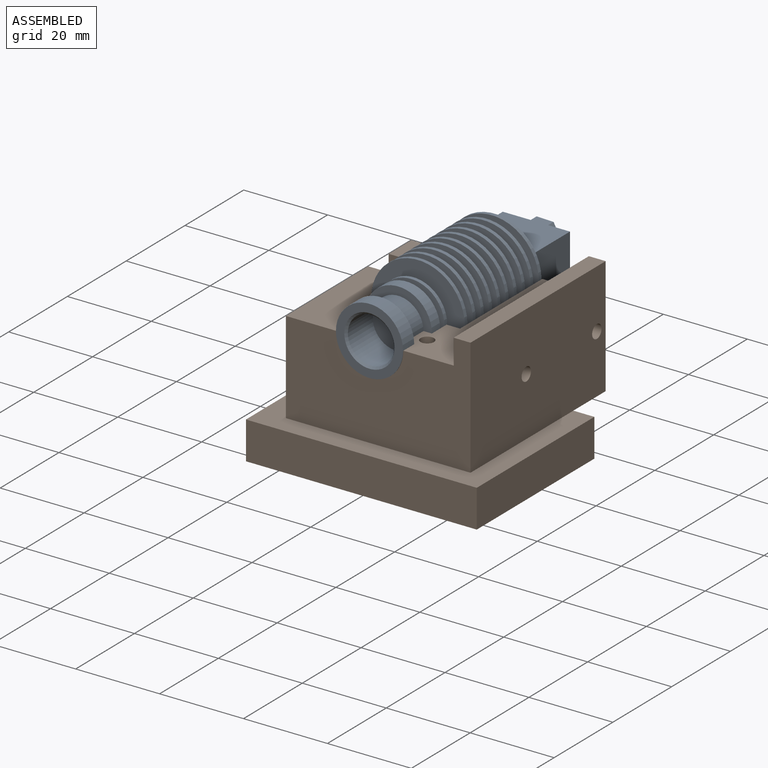
[diagram: assembled view]
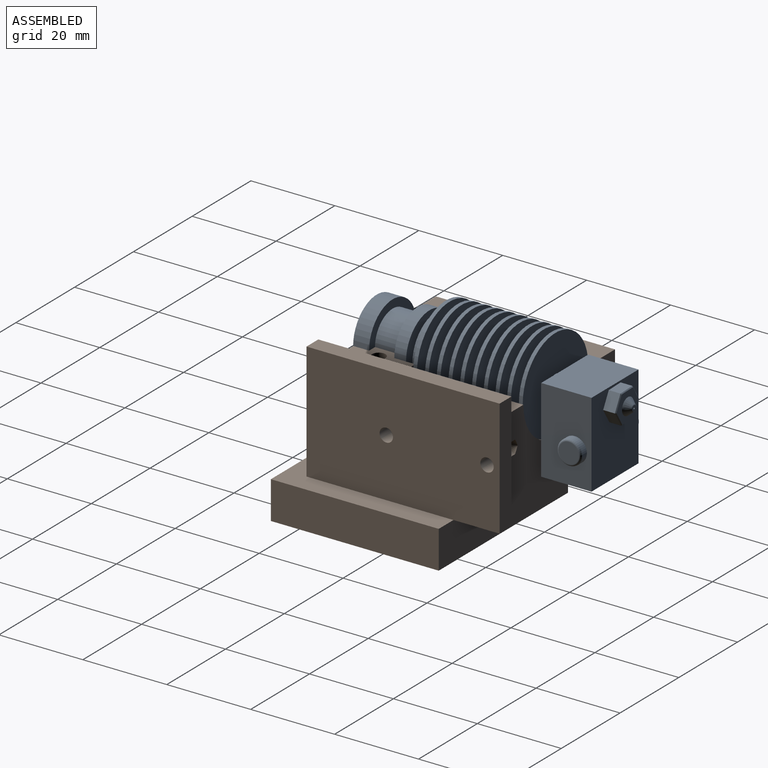
[diagram: assembled view, second angle]
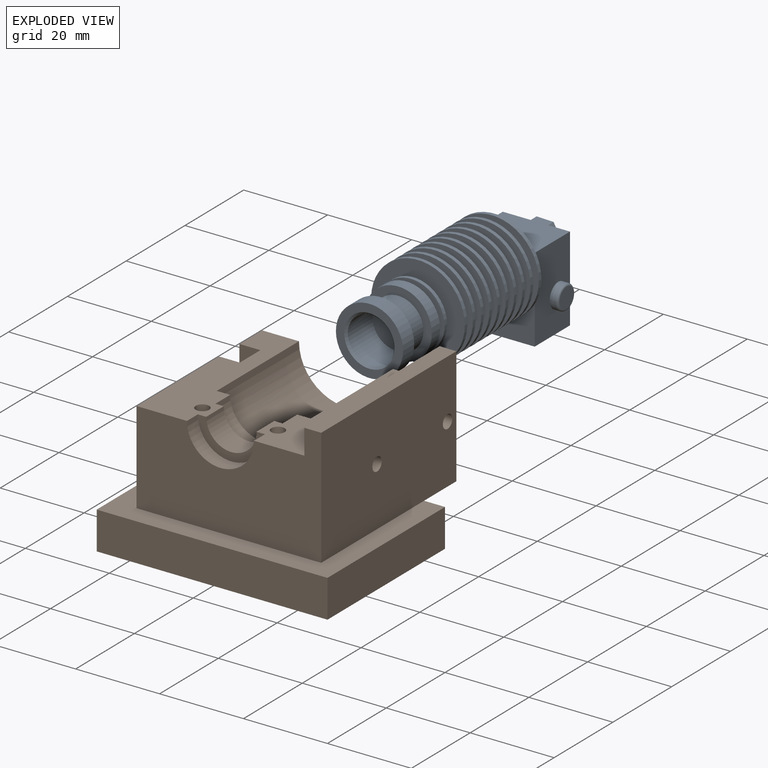
[diagram: exploded view]
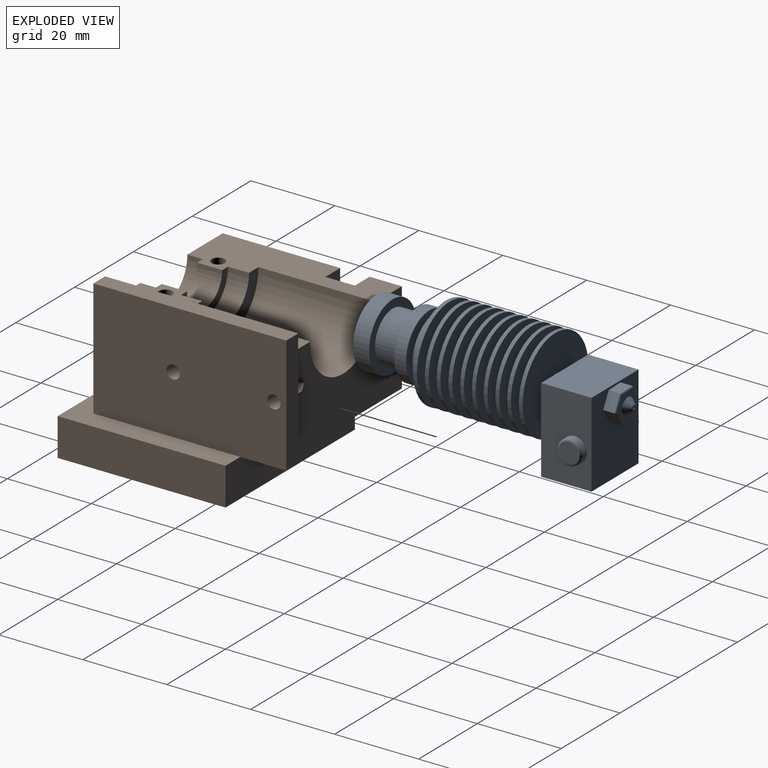
[diagram: exploded view, second angle]
ASSEMBLY  parts=2 mates=2
PART A: 112 faces, bbox 22.3x61.3x27.4 mm
  f0: plane 20.2x16mm, normal (0,1,0), area 280.8mm2, adj f56,f57,f58,f59,f67,f68,f69,f70
  f1: cylinder r=11.15mm len=22.3mm, axis (0,1,0), area 63.1mm2, adj f2,f3
  f2: plane 22.3x22.3mm, normal (0,-1,0), area 312mm2, adj f1,f40
  f3: plane 22.3x22.3mm, normal (0,1,0), area 312mm2, adj f1,f4
  f4: cylinder r=5mm len=10mm, axis (0,1,0), area 59.7mm2, adj f3,f9
  f5: cylinder r=11.15mm len=22.3mm, axis (0,1,0), area 63.1mm2, adj f6,f7
  f6: plane 22.3x22.3mm, normal (0,-1,0), area 312mm2, adj f5,f29
  f7: plane 22.3x22.3mm, normal (0,1,0), area 374mm2, adj f5,f55
  f8: cylinder r=11.15mm len=22.3mm, axis (0,1,0), area 63.1mm2, adj f9,f10
  f9: plane 22.3x22.3mm, normal (0,-1,0), area 312mm2, adj f4,f8
  f10: plane 22.3x22.3mm, normal (0,1,0), area 312mm2, adj f8,f39
  f11: cylinder r=11.15mm len=22.3mm, axis (0,1,0), area 63.1mm2, adj f12,f13
  f12: plane 22.3x22.3mm, normal (0,-1,0), area 312mm2, adj f11,f39
  f13: plane 22.3x22.3mm, normal (0,1,0), area 312mm2, adj f11,f38
  f14: cylinder r=11.15mm len=22.3mm, axis (0,1,0), area 63.1mm2, adj f15,f16
  f15: plane 22.3x22.3mm, normal (0,-1,0), area 312mm2, adj f14,f38
  f16: plane 22.3x22.3mm, normal (0,1,0), area 312mm2, adj f14,f37
  f17: cylinder r=11.15mm len=22.3mm, axis (0,1,0), area 63.1mm2, adj f18,f19
  f18: plane 22.3x22.3mm, normal (0,-1,0), area 312mm2, adj f17,f37
  f19: plane 22.3x22.3mm, normal (0,1,0), area 312mm2, adj f17,f36
  f20: cylinder r=11.15mm len=22.3mm, axis (0,1,0), area 63.1mm2, adj f21,f22
  f21: plane 22.3x22.3mm, normal (0,-1,0), area 312mm2, adj f20,f36
  f22: plane 22.3x22.3mm, normal (0,1,0), area 312mm2, adj f20,f35
  f23: cylinder r=11.15mm len=22.3mm, axis (0,1,0), area 63.1mm2, adj f24,f25
  f24: plane 22.3x22.3mm, normal (0,-1,0), area 312mm2, adj f23,f35
  f25: plane 22.3x22.3mm, normal (0,1,0), area 312mm2, adj f23,f34
  f26: cylinder r=11.15mm len=22.3mm, axis (0,1,0), area 63.1mm2, adj f27,f28
  f27: plane 22.3x22.3mm, normal (0,-1,0), area 312mm2, adj f26,f34
  f28: plane 22.3x22.3mm, normal (0,1,0), area 312mm2, adj f26,f33
  f29: cylinder r=5mm len=10mm, axis (0,1,0), area 59.7mm2, adj f6,f32
  f30: cylinder r=11.15mm len=22.3mm, axis (0,1,0), area 63.1mm2, adj f31,f32
  f31: plane 22.3x22.3mm, normal (0,-1,0), area 312mm2, adj f30,f33
  f32: plane 22.3x22.3mm, normal (0,1,0), area 312mm2, adj f29,f30
  f33: cylinder r=5mm len=10mm, axis (0,1,0), area 59.7mm2, adj f28,f31
  f34: cylinder r=5mm len=10mm, axis (0,1,0), area 59.7mm2, adj f25,f27
  f35: cylinder r=5mm len=10mm, axis (0,1,0), area 59.7mm2, adj f22,f24
  f36: cylinder r=5mm len=10mm, axis (0,1,0), area 59.7mm2, adj f19,f21
  f37: cylinder r=5mm len=10mm, axis (0,1,0), area 59.7mm2, adj f16,f18
  f38: cylinder r=5mm len=10mm, axis (0,1,0), area 59.7mm2, adj f13,f15
  f39: cylinder r=5mm len=10mm, axis (0,1,0), area 59.7mm2, adj f10,f12
  f40: cylinder r=5mm len=10mm, axis (0,1,0), area 47.1mm2, adj f2,f43
  f41: cylinder r=8mm len=16mm, axis (0,1,0), area 45.2mm2, adj f42,f43
  f42: plane 16x16mm, normal (0,-1,0), area 122.5mm2, adj f41,f44
  f43: plane 16x16mm, normal (0,1,0), area 122.5mm2, adj f40,f41
  f44: cylinder r=5mm len=10mm, axis (0,1,0), area 47.1mm2, adj f42,f47
  f45: cylinder r=8mm len=16mm, axis (0,1,0), area 140.7mm2, adj f46,f47
  f46: plane 16x16mm, normal (0,-1,0), area 88mm2, adj f45,f48
  f47: plane 16x16mm, normal (0,1,0), area 122.5mm2, adj f44,f45
  f48: cylinder r=6mm len=12mm, axis (0,1,0), area 226.2mm2, adj f46,f51
  f49: cylinder r=8mm len=16mm, axis (0,1,0), area 191mm2, adj f50,f51
  f50: plane 16x16mm, normal (0,-1,0), area 88mm2, adj f49,f54
  f51: plane 16x16mm, normal (0,1,0), area 88mm2, adj f48,f49
  f52: cylinder r=5.5mm len=11mm, axis (0,-1,0), area 293.7mm2, adj f53,f54
  f53: plane 11x11mm, normal (0,-1,0), area 95mm2, adj f52
  f54: cone r=5.5mm half-angle=45deg, axis (0,-1,0), area 25.5mm2, adj f50,f52
  f55: cylinder r=2.3mm len=4.6mm, axis (0,-1,0), area 31.8mm2, adj f7,f60
  f56: plane 20.2x12mm, normal (1,0,0), area 216mm2, adj f0,f57,f59,f60,f63
  f57: plane 16x12mm, normal (0,0,-1), area 192mm2, adj f0,f56,f58,f60
  f58: plane 20.2x12mm, normal (-1,0,0), area 216mm2, adj f0,f57,f59,f60,f62
  f59: plane 16x12mm, normal (0,0,1), area 192mm2, adj f0,f56,f58,f60
  f60: plane 20.2x16mm, normal (0,-1,0), area 306.6mm2, adj f55,f56,f57,f58,f59
  f61: plane 4.8x4.8mm, normal (-1,0,0), area 18.1mm2, adj f65
  f62: cylinder r=2.9mm len=5.8mm, axis (-1,0,0), area 27.3mm2, adj f58,f65
  f63: cylinder r=2.9mm len=5.8mm, axis (-1,0,0), area 27.3mm2, adj f56,f66
  f64: plane 4.8x4.8mm, normal (1,0,0), area 18.1mm2, adj f66
  f65: torus R=2.4mm, axis (1,0,0), area 13.4mm2, adj f61,f62
  f66: torus R=2.4mm, axis (1,0,0), area 13.4mm2, adj f63,f64
  f67: plane 4.04x2.8mm, normal (0.03,0,1), area 11.3mm2, adj f0,f68,f72,f79
  f68: plane 3.56x2.8mm, normal (0.88,0,0.47), area 11.3mm2, adj f0,f67,f69,f77
  f69: plane 3.44x2.8mm, normal (0.85,0,-0.53), area 11.3mm2, adj f0,f68,f70,f75
  f70: plane 4.04x2.8mm, normal (-0.03,0,-1), area 11.3mm2, adj f0,f69,f71,f74
  f71: plane 3.56x2.8mm, normal (-0.88,0,-0.47), area 11.3mm2, adj f0,f70,f72,f76
  f72: plane 3.44x2.8mm, normal (-0.85,0,0.53), area 11.3mm2, adj f0,f67,f71,f78
  f73: plane 7.62x6.71mm, normal (0,1,0), area 25.2mm2, adj f74,f75,f76,f77,f78,f79,f81
  f74: plane 4.04x0.32mm, normal (-0.02,0.71,-0.71), area 1.1mm2, adj f70,f73,f75,f76
  f75: plane 3.44x2.24mm, normal (0.6,0.71,-0.37), area 1.1mm2, adj f69,f73,f74,f77
  f76: plane 3.56x2.03mm, normal (-0.62,0.71,-0.33), area 1.1mm2, adj f71,f73,f74,f78
  f77: plane 3.56x2.03mm, normal (0.62,0.71,0.33), area 1.1mm2, adj f68,f73,f75,f79
  f78: plane 3.44x2.24mm, normal (-0.6,0.71,0.37), area 1.1mm2, adj f72,f73,f76,f79
  f79: plane 4.04x0.32mm, normal (0.02,0.71,0.71), area 1.1mm2, adj f67,f73,f77,f78
  f80: plane 1.31x1.31mm, normal (0,1,0), area 1.2mm2, adj f82,f83
  f81: cone r=2mm half-angle=39.8deg, axis (0,-1,0), area 16.4mm2, adj f73,f82
  f82: torus R=0.66mm, axis (0,1,0), area 0.8mm2, adj f80,f81
  f83: cylinder r=0.2mm len=10mm, axis (0,1,0), area 12.6mm2, adj f80,f84
  f84: plane 0.4x0.4mm, normal (0,1,0), area 0.1mm2, adj f83
  f85: plane 4.6x4.6mm, normal (0,1,0), area 16.6mm2, adj f87
  f86: plane 4.6x4.6mm, normal (0,-1,0), area 16.6mm2, adj f87
  f87: cylinder r=2.3mm len=4.6mm, axis (0,1,0), area 27.5mm2, adj f85,f86
  f88: cylinder r=2.3mm len=4.6mm, axis (0,1,0), area 27.5mm2, adj f89,f90
  f89: plane 4.6x4.6mm, normal (0,1,0), area 16.6mm2, adj f88
  f90: plane 4.6x4.6mm, normal (0,-1,0), area 16.6mm2, adj f88
  f91: plane 4.6x4.6mm, normal (0,-1,0), area 16.6mm2, adj f92
  f92: cylinder r=2.3mm len=4.6mm, axis (0,1,0), area 27.5mm2, adj f91,f93
  f93: plane 4.6x4.6mm, normal (0,1,0), area 16.6mm2, adj f92
  f94: plane 4.6x4.6mm, normal (0,-1,0), area 16.6mm2, adj f95
  f95: cylinder r=2.3mm len=4.6mm, axis (0,1,0), area 27.5mm2, adj f94,f96
  f96: plane 4.6x4.6mm, normal (0,1,0), area 16.6mm2, adj f95
  f97: plane 4.6x4.6mm, normal (0,-1,0), area 16.6mm2, adj f98
  f98: cylinder r=2.3mm len=4.6mm, axis (0,1,0), area 27.5mm2, adj f97,f99
  f99: plane 4.6x4.6mm, normal (0,1,0), area 16.6mm2, adj f98
  f100: plane 4.6x4.6mm, normal (0,-1,0), area 16.6mm2, adj f101
  f101: cylinder r=2.3mm len=4.6mm, axis (0,1,0), area 27.5mm2, adj f100,f102
  f102: plane 4.6x4.6mm, normal (0,1,0), area 16.6mm2, adj f101
  f103: plane 4.6x4.6mm, normal (0,-1,0), area 16.6mm2, adj f104
  f104: cylinder r=2.3mm len=4.6mm, axis (0,1,0), area 27.5mm2, adj f103,f105
  f105: plane 4.6x4.6mm, normal (0,1,0), area 16.6mm2, adj f104
  f106: plane 4.6x4.6mm, normal (0,-1,0), area 16.6mm2, adj f107
  f107: cylinder r=2.3mm len=4.6mm, axis (0,1,0), area 27.5mm2, adj f106,f108
  f108: plane 4.6x4.6mm, normal (0,1,0), area 16.6mm2, adj f107
  f109: plane 4.6x4.6mm, normal (0,-1,0), area 16.6mm2, adj f110
  f110: cylinder r=2.3mm len=4.6mm, axis (0,1,0), area 27.5mm2, adj f109,f111
  f111: plane 4.6x4.6mm, normal (0,1,0), area 16.6mm2, adj f110
PART B: 60 faces, bbox 55x37x51 mm
  f0: cylinder r=1.6mm len=21mm, axis (0,-1,0), area 211.1mm2, adj f17,f58
  f1: cylinder r=1.6mm len=21mm, axis (0,-1,0), area 211.1mm2, adj f9,f56
  f2: plane 10.57x7.51mm, normal (0,0,-1), area 36.1mm2, adj f3,f5,f17,f55
  f3: cylinder r=8mm len=16mm, axis (0,0,-1), area 109.6mm2, adj f2,f4,f9,f17,f26,f55
  f4: plane 11.18x10.51mm, normal (0,0,-1), area 46mm2, adj f3,f5,f9,f55
  f5: cylinder r=11.2mm len=28mm, axis (0,0,-1), area 981.1mm2, adj f2,f4,f9,f15,f17,f55
  f6: cylinder r=1.75mm len=3.5mm, axis (0,1,0), area 37.4mm2, adj f14,f54
  f7: plane 28x11mm, normal (0,1,0), area 148.7mm2, adj f8,f33,f34,f35,f37,f38,f39,f40
  f8: plane 33x9mm, normal (1,0,0), area 199mm2, adj f7,f12,f14,f32,f33,f35
  f9: plane 42.7x14mm, normal (0,-1,0), area 391.8mm2, adj f1,f3,f4,f5,f10,f11,f15,f16
  f10: plane 28x22mm, normal (1,0,0), area 616mm2, adj f9,f12,f16,f35
  f11: plane 22x7.7mm, normal (1,0,0), area 169.4mm2, adj f9,f15,f19,f36
  f12: plane 55x40mm, normal (0,-1,0), area 618mm2, adj f8,f10,f13,f16,f22,f31,f32,f35
  f13: plane 44x9mm, normal (0,0,-1), area 396mm2, adj f12,f14,f19,f31,f34
  f14: plane 55x40mm, normal (0,1,0), area 1737.8mm2, adj f6,f8,f13,f31,f32,f33,f34,f46
  f15: plane 40x22mm, normal (0,0,-1), area 662.7mm2, adj f5,f9,f11,f17,f18,f19,f27,f28
  f16: plane 44x28mm, normal (0,0,1), area 891.5mm2, adj f9,f10,f12,f17,f18,f20,f22,f23
  f17: plane 42.7x14mm, normal (0,-1,0), area 426.8mm2, adj f0,f2,f3,f5,f15,f16,f18,f23
  f18: plane 46x28mm, normal (1,0,0), area 343.6mm2, adj f15,f16,f17,f19,f20,f21,f28
  f19: plane 44x11mm, normal (0,1,0), area 352mm2, adj f11,f13,f15,f18,f21,f22,f36
  f20: plane 46x4mm, normal (0,-1,0), area 184mm2, adj f16,f18,f21,f22
  f21: plane 28x4mm, normal (0,0,-1), area 112mm2, adj f18,f19,f20,f22
  f22: plane 46x28mm, normal (-1,0,0), area 1271.9mm2, adj f12,f16,f19,f20,f21,f28,f30
  f23: cylinder r=8mm len=16mm, axis (0,0,-1), area 93mm2, adj f9,f16,f17,f24
  f24: plane 16x8mm, normal (0,0,1), area 44mm2, adj f9,f17,f23,f25
  f25: cylinder r=6mm len=12mm, axis (0,0,-1), area 113.1mm2, adj f9,f17,f24,f26
  f26: plane 16x8mm, normal (0,0,-1), area 44mm2, adj f3,f9,f17,f25
  f27: cone r=0mm half-angle=59deg, axis (-1,0,0), area 3.6mm2, adj f15,f28
  f28: cylinder r=1.6mm len=10mm, axis (-1,0,0), area 66.8mm2, adj f15,f18,f22,f27
  f29: cone r=0mm half-angle=59deg, axis (-1,0,0), area 9.4mm2, adj f30
  f30: cylinder r=1.6mm len=10mm, axis (-1,0,0), area 100.5mm2, adj f22,f29
  f31: plane 40x9mm, normal (-1,0,0), area 360mm2, adj f12,f13,f14,f32
  f32: plane 55x9mm, normal (0,0,1), area 495mm2, adj f8,f12,f14,f31
  f33: plane 11x3.5mm, normal (0,0,-1), area 38.5mm2, adj f7,f8,f14,f34
  f34: plane 35x31mm, normal (1,0,0), area 315mm2, adj f7,f9,f13,f14,f33,f35,f36
  f35: plane 27.5x11mm, normal (0,0,-1), area 170.5mm2, adj f7,f8,f9,f10,f12,f34
  f36: plane 22x5mm, normal (0,0,1), area 110mm2, adj f9,f11,f19,f34
  f37: plane 12x1.5mm, normal (-1,0,0), area 18mm2, adj f7,f38,f40,f41
  f38: plane 10x1.5mm, normal (0,0,1), area 15mm2, adj f7,f37,f39,f41
  f39: plane 12x1.5mm, normal (1,0,0), area 18mm2, adj f7,f38,f40,f41
  f40: plane 10x1.5mm, normal (0,0,-1), area 15mm2, adj f7,f37,f39,f41
  f41: plane 12x10mm, normal (0,1,0), area 120mm2, adj f37,f38,f39,f40
  f42: cylinder r=2.5mm len=5mm, axis (0,1,0), area 78.5mm2, adj f7,f45
  f43: cylinder r=2.5mm len=5mm, axis (0,1,0), area 78.5mm2, adj f7,f44
  f44: plane 5x5mm, normal (0,1,0), area 19.6mm2, adj f43
  f45: plane 5x5mm, normal (0,1,0), area 19.6mm2, adj f42
  f46: cylinder r=1.5mm len=8mm, axis (0,1,0), area 75.4mm2, adj f14,f47
  f47: plane 3x3mm, normal (0,1,0), area 7.1mm2, adj f46
  f48: cylinder r=1.5mm len=8mm, axis (0,1,0), area 75.4mm2, adj f14,f49
  f49: plane 3x3mm, normal (0,1,0), area 7.1mm2, adj f48
  f50: cylinder r=1.5mm len=8mm, axis (0,1,0), area 75.4mm2, adj f14,f51
  f51: plane 3x3mm, normal (0,1,0), area 7.1mm2, adj f50
  f52: cylinder r=1.5mm len=8mm, axis (0,1,0), area 75.4mm2, adj f14,f53
  f53: plane 3x3mm, normal (0,1,0), area 7.1mm2, adj f52
  f54: plane 5x5mm, normal (0,-1,0), area 10mm2, adj f6,f55
  f55: cylinder r=2.5mm len=20.5mm, axis (0,1,0), area 297.3mm2, adj f2,f3,f4,f5,f54
  f56: plane 5x5mm, normal (0,1,0), area 11.6mm2, adj f1,f57
  f57: cylinder r=2.5mm len=10mm, axis (0,1,0), area 157.1mm2, adj f14,f56
  f58: plane 5x5mm, normal (0,1,0), area 11.6mm2, adj f0,f59
  f59: cylinder r=2.5mm len=10mm, axis (0,1,0), area 157.1mm2, adj f14,f58
PLACE A t=(24.33,42.6,-68.38)mm
PLACE B rot(axis=(0,-0.71,0.71),180deg) t=(20,23.1,-8)mm
MATE fastened B.f3 <-> A.f1  axis (0,1,0) through (0,6.8,0)mm
MATE planar B.f24 <-> A.f1  axis (0,-1,0) through (0,3.8,-4.49)mm
